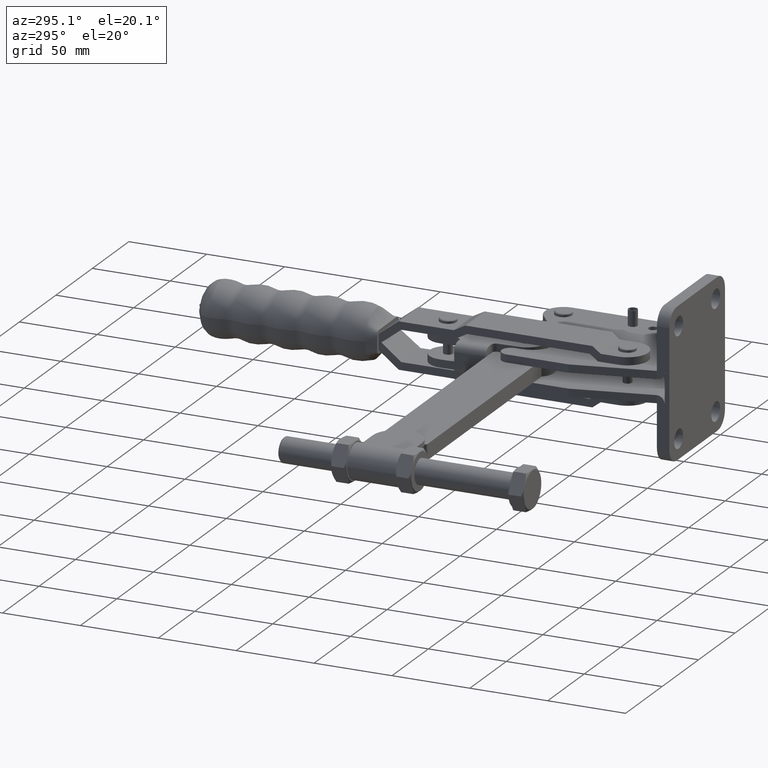
[diagram: clean part render]
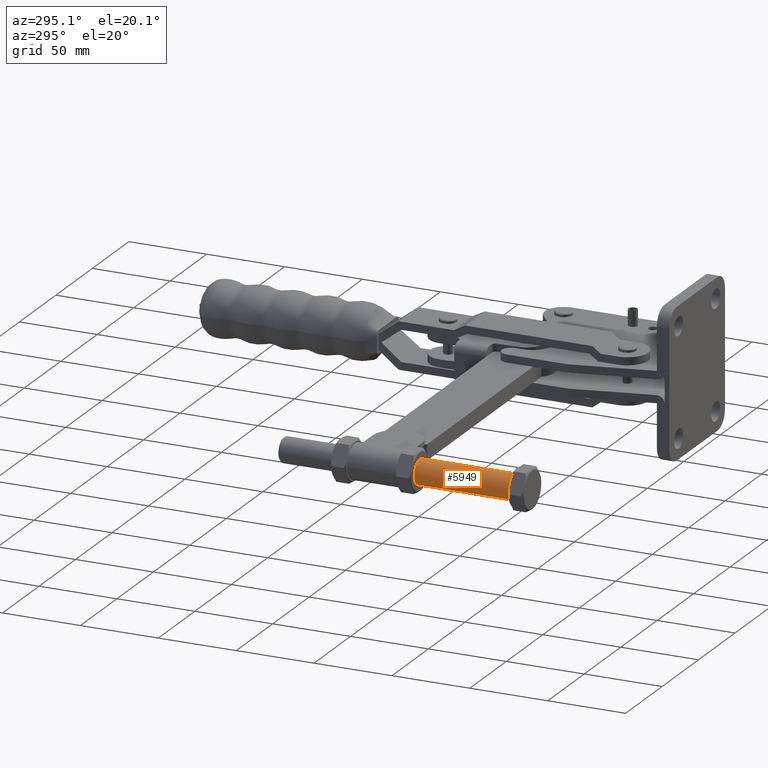
[diagram: same view with one face highlighted and labeled with its STEP entity id]
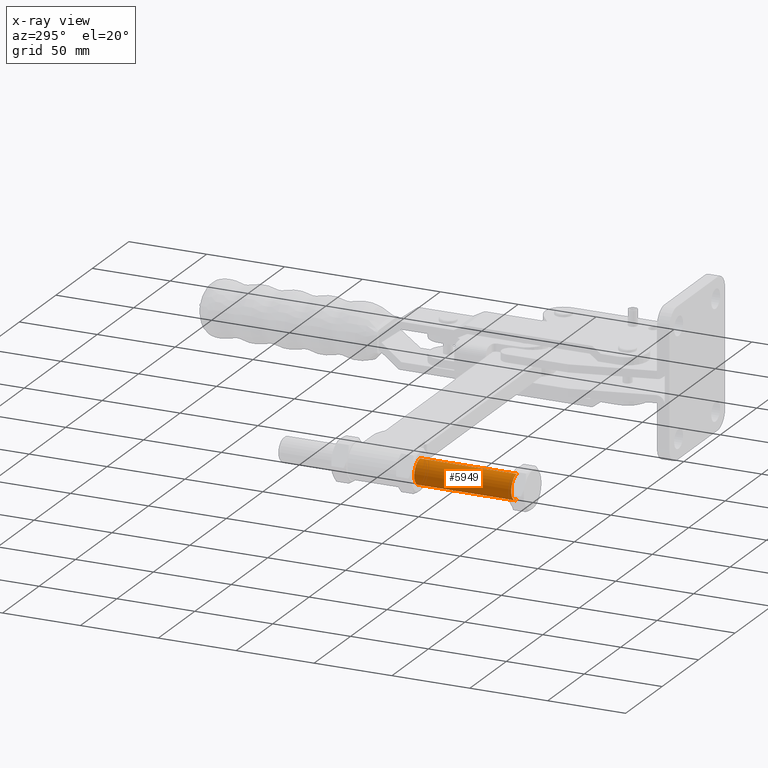
[diagram: x-ray of the same camera — body ghosted, the highlighted face saturated]
A machine part, auxiliary view. The second image highlights one B-rep face of the part: STEP entity #5949.
The next image is the same camera in x-ray: the body ghosted, the highlighted face saturated — about 0% of this face is hidden behind the body in this view.
In plain terms, the highlighted cylindrical surface (edge-blend (fillet) strip) has radius 8 mm, axis along (0, -1, 0).
Its self-contained STEP definition (entity closure, byte-faithful):
#503 = EDGE_CURVE ( 'NONE', #8338, #2091, #8893, .T. ) ;
#638 = DIRECTION ( 'NONE',  ( 0.0000000000000000000, 1.000000000000000000, -1.224646799147353200E-016 ) ) ;
#743 = CARTESIAN_POINT ( 'NONE',  ( -263.6638732998076200, 156.9999999999999100, -13.00000000000001100 ) ) ;
#1057 = AXIS2_PLACEMENT_3D ( 'NONE', #12270, #10161, #2873 ) ;
#1104 = ORIENTED_EDGE ( 'NONE', *, *, #5883, .T. ) ;
#1238 = ORIENTED_EDGE ( 'NONE', *, *, #8867, .T. ) ;
#1648 = DIRECTION ( 'NONE',  ( 0.0000000000000000000, -1.000000000000000000, 1.224646799147353200E-016 ) ) ;
#2091 = VERTEX_POINT ( 'NONE', #6380 ) ;
#2577 = FACE_OUTER_BOUND ( 'NONE', #12827, .T. ) ;
#2873 = DIRECTION ( 'NONE',  ( 0.0000000000000000000, 0.0000000000000000000, 1.000000000000000000 ) ) ;
#3217 = VECTOR ( 'NONE', #7938, 1000.000000000000000 ) ;
#3600 = EDGE_CURVE ( 'NONE', #10899, #8338, #5600, .T. ) ;
#3964 = CARTESIAN_POINT ( 'NONE',  ( -263.6638732998076200, 69.20000000000001700, -13.00000000000000200 ) ) ;
#5037 = ORIENTED_EDGE ( 'NONE', *, *, #503, .F. ) ;
#5480 = ORIENTED_EDGE ( 'NONE', *, *, #3600, .F. ) ;
#5600 = CIRCLE ( 'NONE', #7453, 8.000000000000000000 ) ;
#5609 = DIRECTION ( 'NONE',  ( 0.0000000000000000000, 0.0000000000000000000, 1.000000000000000000 ) ) ;
#5844 = CARTESIAN_POINT ( 'NONE',  ( -263.6638732998076200, 69.20000000000001700, 2.999999999999998200 ) ) ;
#5883 = EDGE_CURVE ( 'NONE', #10899, #7968, #8454, .T. ) ;
#5949 = ADVANCED_FACE ( 'NONE', ( #2577 ), #12417, .T. ) ;
#6380 = CARTESIAN_POINT ( 'NONE',  ( -263.6638732998076200, 6.999999999999928900, 3.000000000000006200 ) ) ;
#6837 = CARTESIAN_POINT ( 'NONE',  ( -263.6638732998076200, 6.999999999999928100, -4.999999999999993800 ) ) ;
#7453 = AXIS2_PLACEMENT_3D ( 'NONE', #13234, #10730, #5609 ) ;
#7876 = DIRECTION ( 'NONE',  ( 0.0000000000000000000, -1.084202172485504400E-016, -1.000000000000000000 ) ) ;
#7938 = DIRECTION ( 'NONE',  ( 0.0000000000000000000, -1.000000000000000000, 1.224646799147353200E-016 ) ) ;
#7968 = VERTEX_POINT ( 'NONE', #10390 ) ;
#8222 = VECTOR ( 'NONE', #1648, 1000.000000000000000 ) ;
#8338 = VERTEX_POINT ( 'NONE', #5844 ) ;
#8454 = LINE ( 'NONE', #743, #3217 ) ;
#8867 = EDGE_CURVE ( 'NONE', #7968, #2091, #12087, .T. ) ;
#8893 = LINE ( 'NONE', #11620, #8222 ) ;
#10161 = DIRECTION ( 'NONE',  ( 0.0000000000000000000, -1.000000000000000000, 1.224646799147353200E-016 ) ) ;
#10390 = CARTESIAN_POINT ( 'NONE',  ( -263.6638732998076200, 6.999999999999927200, -12.99999999999999500 ) ) ;
#10730 = DIRECTION ( 'NONE',  ( 0.0000000000000000000, 1.000000000000000000, -1.224646799147353200E-016 ) ) ;
#10899 = VERTEX_POINT ( 'NONE', #3964 ) ;
#11620 = CARTESIAN_POINT ( 'NONE',  ( -263.6638732998076200, 156.9999999999999100, 2.999999999999988000 ) ) ;
#12087 = CIRCLE ( 'NONE', #12717, 8.000000000000000000 ) ;
#12270 = CARTESIAN_POINT ( 'NONE',  ( -263.6638732998076200, 156.9999999999999100, -5.000000000000012400 ) ) ;
#12417 = CYLINDRICAL_SURFACE ( 'NONE', #1057, 8.000000000000000000 ) ;
#12717 = AXIS2_PLACEMENT_3D ( 'NONE', #6837, #638, #7876 ) ;
#12827 = EDGE_LOOP ( 'NONE', ( #5480, #1104, #1238, #5037 ) ) ;
#13234 = CARTESIAN_POINT ( 'NONE',  ( -263.6638732998076200, 69.20000000000001700, -5.000000000000001800 ) ) ;